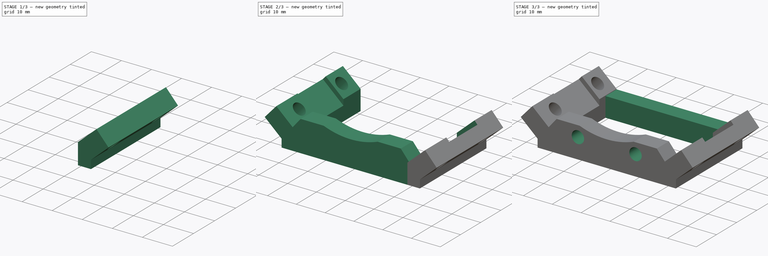
[diagram: build sequence overview — one tinted view per stage of 3, left to right]
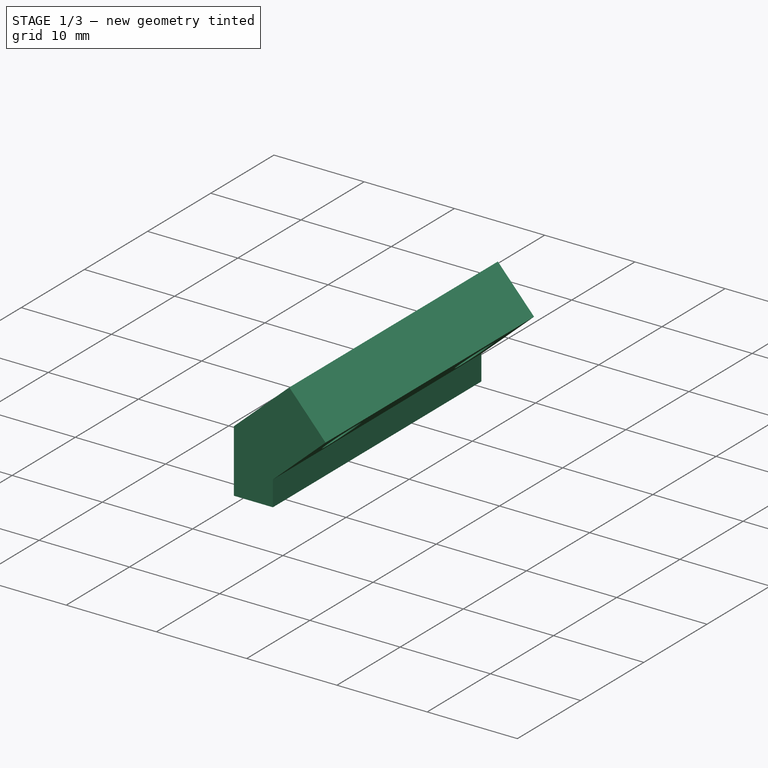
[diagram: stage 1 of 3 — iso view after this stage's code; geometry added in this stage tinted green]
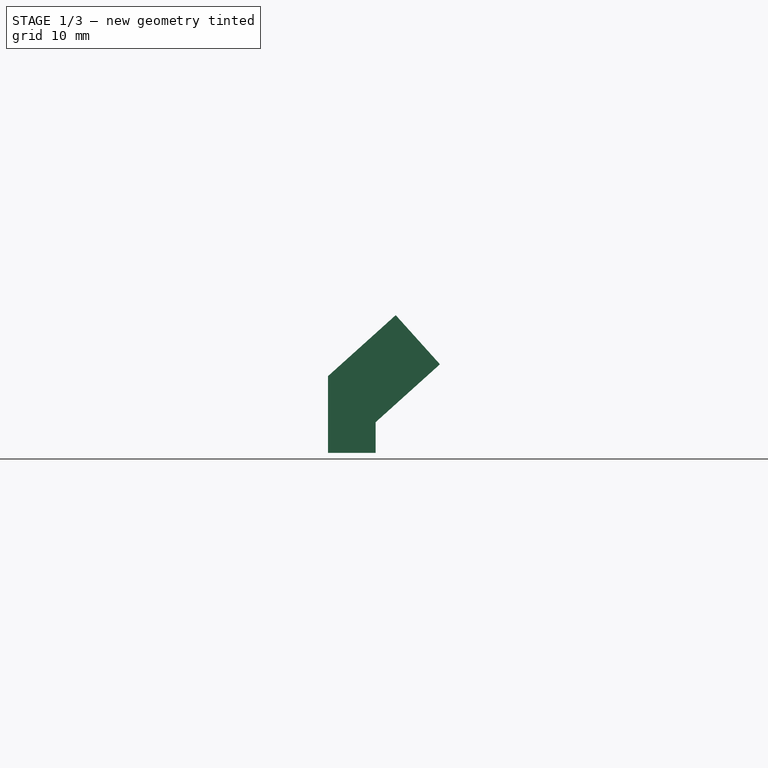
[diagram: stage 1 of 3 — front view after this stage's code; geometry added in this stage tinted green]
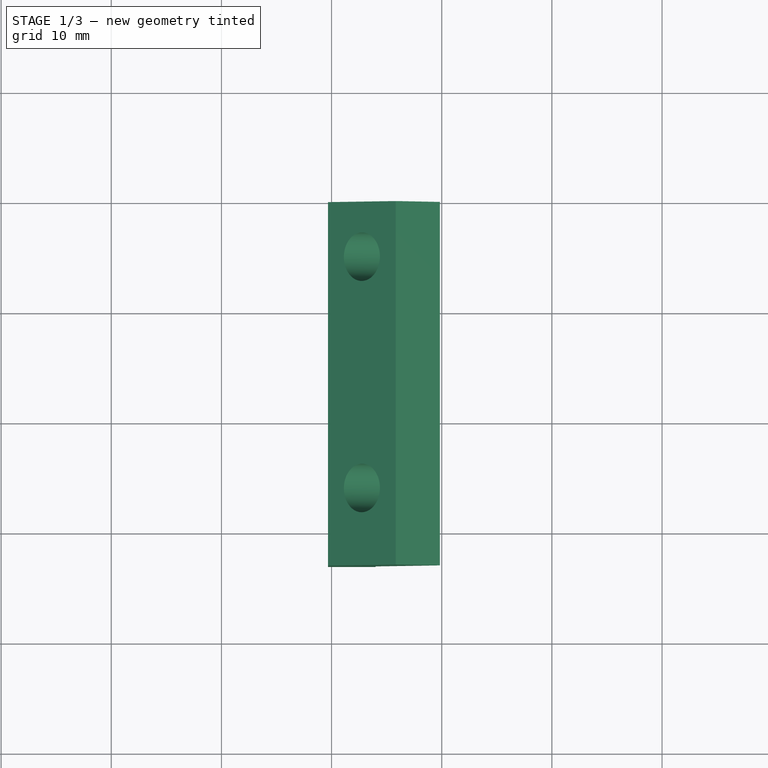
[diagram: stage 1 of 3 — top view after this stage's code; geometry added in this stage tinted green]
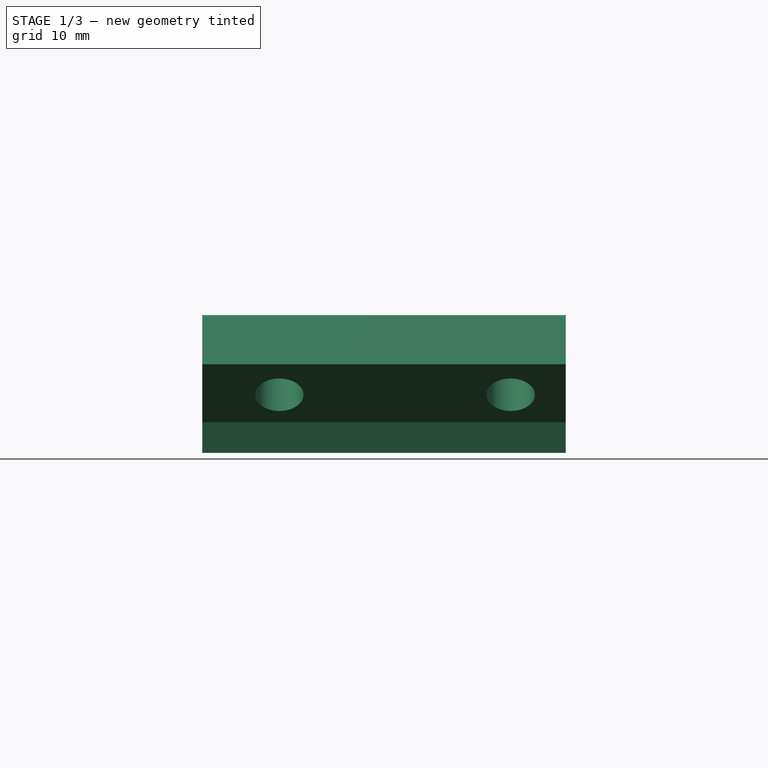
[diagram: stage 1 of 3 — right view after this stage's code; geometry added in this stage tinted green]
FCSTD DOCUMENT  (FreeCAD 0.21R32110 (Git))
Label: Frame_Roll_Limit_IR_Sensor_Mount
License: All rights reserved
LicenseURL: http://en.wikipedia.org/wiki/All_rights_reserved
objects: Sketcher::SketchObject×6, PartDesign::Pad×3, PartDesign::Pocket×3, PartDesign::Plane×1, PartDesign::Mirrored×1, PartDesign::Body×1
note: 21 computed .brp shape members not serialized (recipe doc carries the construction recipe); baked Part::Feature solids carry a one-line shape summary decoded from their .brp

FEATURE [Sketcher::SketchObject] Sketch097
  AttachmentOffset = pos=(0,0,-27) rot=(0,0,1;0rad)
  FullyConstrained = true
  MapMode = 5
  Placement = pos=(0,27,6e-15) rot=(1,0,0;1.5708rad)
  Support = -> [XZ_Plane031]
  sketch-geometry (7):
    g0: LineSegment StartX=25.8209 StartY=-22.5023 StartZ=0 EndX=19.68 EndY=-28.0316 EndZ=0
    g1: LineSegment StartX=19.68 StartY=-35 StartZ=0 EndX=24 EndY=-35 EndZ=0
    g2: LineSegment StartX=0 StartY=0 StartZ=0 EndX=22.7504 EndY=-25.2669 EndZ=0
    g3: LineSegment StartX=24 StartY=-32.2156 StartZ=0 EndX=24 EndY=-35 EndZ=0
    g4: LineSegment StartX=19.68 StartY=-35 StartZ=0 EndX=19.68 EndY=-28.0316 EndZ=0
    g5: LineSegment StartX=24 StartY=-32.2156 StartZ=0 EndX=29.8357 EndY=-26.9612 EndZ=0
    g6: LineSegment StartX=25.8209 StartY=-22.5023 StartZ=0 EndX=29.8357 EndY=-26.9612 EndZ=0
  constraints (20):
    c: Horizontal(g1)
    c: DistanceY(g1) = -35
    c: Coincident(g2,g-1)
    c: Angle(g2,g0) = 1.5708
    c: Coincident(g3,g1)
    c: Vertical(g3)
    c: Symmetric(g0,g0,g2)
    c: Coincident(g4,g1)
    c: Vertical(g4)
    c: Angle(g2,g-1) = 0.837758
    c: Distance(g2,g2) = 34
    c: Parallel(g0,g5)
    c: Coincident(g6,g0)
    c: Coincident(g6,g5)
    c: Angle(g0,g6) = 1.5708
    c: Coincident(g3,g5)
    c: Distance(g6) = 6
    c: Coincident(g4,g0)
    c: Distance(g1) = 4.32
    c: DistanceX(g1) = 24
FEATURE [PartDesign::Pad] Pad054
  Direction = (0,-1,-2e-16)
  Length = 33
  Length2 = 10
  Placement = pos=(0,0,0) rot=(1,0,0;1.5708rad)
  Profile = -> Sketch097
  ReferenceAxis = -> Sketch097 [N_Axis]
  Reversed = true
  Type = 0
FEATURE [PartDesign::Plane] DatumPlane
  Length = 82.4977
  MapMode = 5
  Placement = pos=(22.7504,-5.6e-15,-25.2669) rot=(-0.358368,0,0.93358;3.14159rad)
  ResizeMode = 0
  Support = -> [Pad054]
  Width = 61.8839
FEATURE [Sketcher::SketchObject] Sketch098
  AttachmentOffset = pos=(0,0.75,0) rot=(0,0,1;0rad)
  FullyConstrained = true
  MapMode = 5
  Placement = pos=(22.7504,-0.75,-25.2669) rot=(-0.358368,0,0.93358;3.14159rad)
  Support = -> [DatumPlane]
  sketch-geometry (2):
    g0: Circle CenterX=0 CenterY=-55.75 CenterZ=0 NormalX=0 NormalY=0 NormalZ=1 AngleXU=0 Radius=2.2
    g1: Circle CenterX=0 CenterY=-34.75 CenterZ=0 NormalX=0 NormalY=0 NormalZ=1 AngleXU=0 Radius=2.2
  constraints (6):
    c: PointOnObject(g0,g-2)
    c: PointOnObject(g1,g-2)
    c: DistanceY(g0,g1) = 21
    c: DistanceY(g1) = -34.75
    c: Equal(g0,g1)
    c: Diameter(g0) = 4.4
FEATURE [PartDesign::Pocket] Pocket034
  BaseFeature = -> Pad054
  Direction = (0.669131,-2e-16,-0.743145)
  Length = 5
  Length2 = 5
  Placement = pos=(0,0,0) rot=(1,0,0;1.5708rad)
  Profile = -> Sketch098
  ReferenceAxis = -> Sketch098 [N_Axis]
  Type = 1
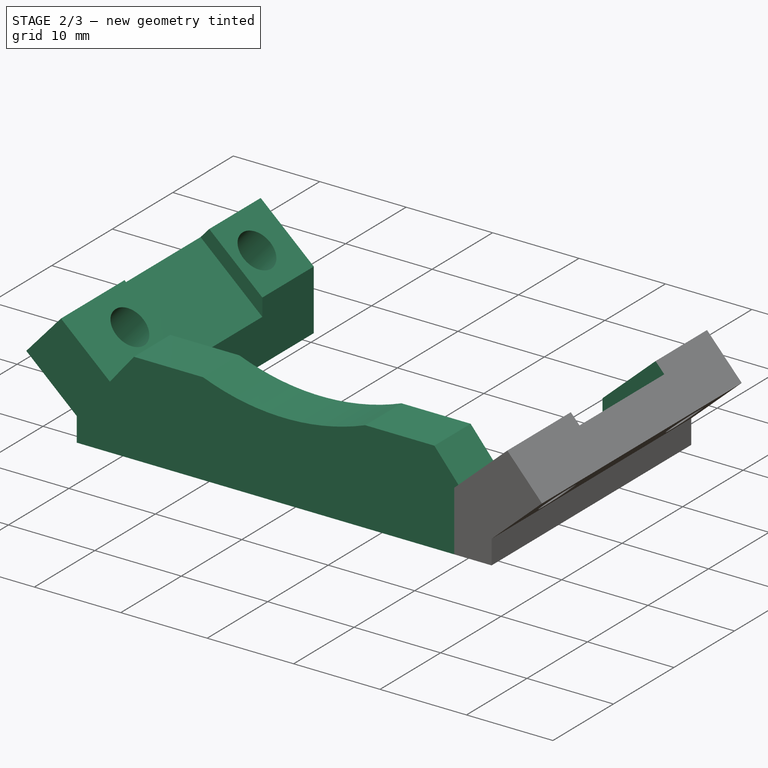
[diagram: stage 2 of 3 — iso view after this stage's code; geometry added in this stage tinted green]
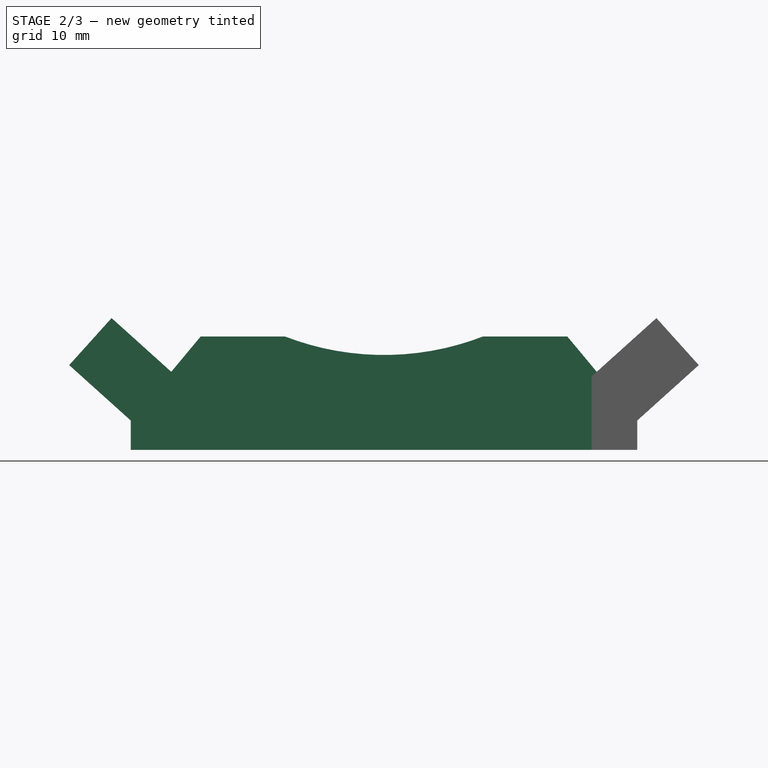
[diagram: stage 2 of 3 — front view after this stage's code; geometry added in this stage tinted green]
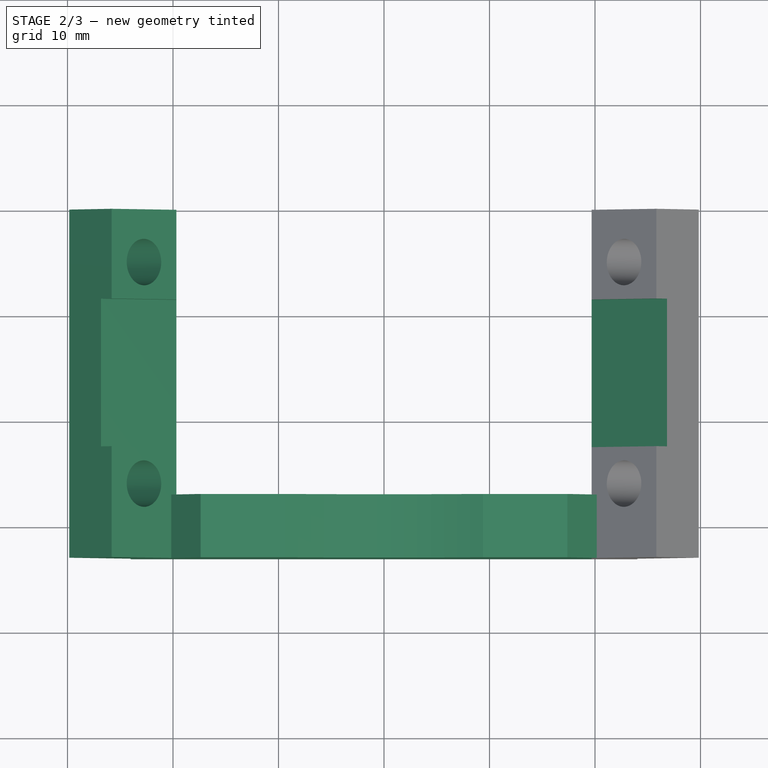
[diagram: stage 2 of 3 — top view after this stage's code; geometry added in this stage tinted green]
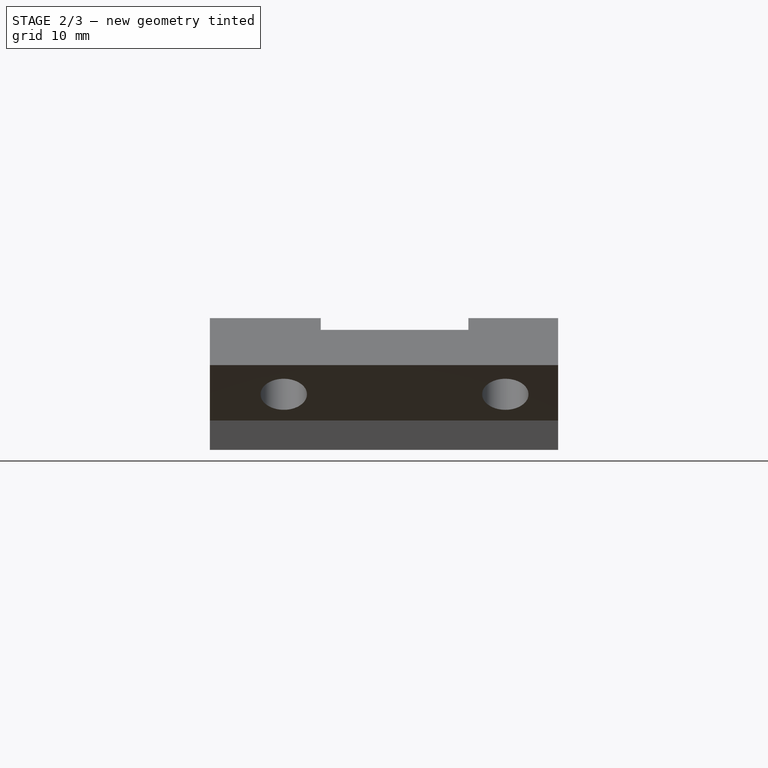
[diagram: stage 2 of 3 — right view after this stage's code; geometry added in this stage tinted green]
FEATURE [Sketcher::SketchObject] Sketch099
  AttachmentOffset = pos=(0,0.75,0) rot=(0,0,1;0rad)
  FullyConstrained = true
  MapMode = 5
  Placement = pos=(22.7504,-0.75,-25.2669) rot=(-0.358368,0,0.93358;3.14159rad)
  Support = -> [DatumPlane]
  sketch-geometry (4):
    g0: LineSegment StartX=-7 StartY=-38.25 StartZ=0 EndX=7 EndY=-38.25 EndZ=0
    g1: LineSegment StartX=7 StartY=-38.25 StartZ=0 EndX=7 EndY=-52.25 EndZ=0
    g2: LineSegment StartX=7 StartY=-52.25 StartZ=0 EndX=-7 EndY=-52.25 EndZ=0
    g3: LineSegment StartX=-7 StartY=-52.25 StartZ=0 EndX=-7 EndY=-38.25 EndZ=0
  constraints (11):
    c: Coincident(g0,g1)
    c: Coincident(g1,g2)
    c: Coincident(g2,g3)
    c: Coincident(g3,g0)
    c: Horizontal(g2)
    c: Vertical(g1)
    c: Vertical(g3)
    c: DistanceY(g1,g1) = 14
    c: DistanceX(g2,g2) = 14
    c: Symmetric(g0,g0,g-2)
    c: DistanceY(g0) = -38.25
FEATURE [PartDesign::Pocket] Pocket035
  BaseFeature = -> Pocket034
  Direction = (0.669131,-2e-16,-0.743145)
  Length = 1.5
  Length2 = 5
  Placement = pos=(0,0,0) rot=(1,0,0;1.5708rad)
  Profile = -> Sketch099
  ReferenceAxis = -> Sketch099 [N_Axis]
  Type = 0
FEATURE [Sketcher::SketchObject] Sketch100
  AttachmentOffset = pos=(0,0,-27) rot=(0,0,1;0rad)
  FullyConstrained = true
  MapMode = 5
  Placement = pos=(0,27,6e-15) rot=(1,0,0;1.5708rad)
  Support = -> [XZ_Plane031]
  sketch-geometry (8):
    g0: LineSegment StartX=17.3775 StartY=-24.25 StartZ=0 EndX=9.3775 EndY=-24.25 EndZ=0
    g1: LineSegment StartX=-21.5 StartY=-29.2 StartZ=0 EndX=-21.5 EndY=-35 EndZ=0
    g2: LineSegment StartX=-21.5 StartY=-35 StartZ=0 EndX=21.5 EndY=-35 EndZ=0
    g3: ArcOfCircle CenterX=0 CenterY=0 CenterZ=0 NormalX=0 NormalY=0 NormalZ=1 AngleXU=0 Radius=26 StartAngle=4.3434 EndAngle=5.08138
    g4: LineSegment StartX=-9.3775 StartY=-24.25 StartZ=0 EndX=-17.3775 EndY=-24.25 EndZ=0
    g5: LineSegment StartX=21.5 StartY=-35 StartZ=0 EndX=21.5 EndY=-29.2 EndZ=0
    g6: LineSegment StartX=21.5 StartY=-29.2 StartZ=0 EndX=17.3775 EndY=-24.25 EndZ=0
    g7: LineSegment StartX=-21.5 StartY=-29.2 StartZ=0 EndX=-17.3775 EndY=-24.25 EndZ=0
  constraints (23):
    c: Coincident(g1,g2)
    c: Vertical(g1)
    c: DistanceY(g2) = -35
    c: Coincident(g3,g-1)
    c: Coincident(g0,g3)
    c: Coincident(g4,g3)
    c: Horizontal(g3,g0)
    c: Horizontal(g4)
    c: Diameter(g3) = 52
    c: Symmetric(g1,g2,g-2)
    c: Coincident(g5,g2)
    c: Vertical(g5)
    c: Coincident(g6,g5)
    c: Coincident(g6,g0)
    c: Coincident(g7,g1)
    c: Coincident(g7,g4)
    c: Equal(g5,g1)
    c: Distance(g4) = 8
    c: Equal(g4,g0)
    c: Distance(g2) = 43
    c: Distance(g1) = 5.8
    c: Horizontal(g0)
    c: DistanceY(g1,g4) = 10.75
FEATURE [PartDesign::Pad] Pad055
  BaseFeature = -> Pocket035
  Direction = (0,-1,-2e-16)
  Length = 6
  Length2 = 10
  Placement = pos=(0,0,0) rot=(1,0,0;1.5708rad)
  Profile = -> Sketch100
  ReferenceAxis = -> Sketch100 [N_Axis]
  Reversed = true
  Type = 0
FEATURE [Sketcher::SketchObject] Sketch101
  AttachmentOffset = pos=(0,0,-33) rot=(0,0,1;0rad)
  FullyConstrained = true
  MapMode = 5
  Placement = pos=(0,33,7.3e-15) rot=(1,0,0;1.5708rad)
  Support = -> [XZ_Plane031]
  sketch-geometry (2):
    g0: Circle CenterX=-10 CenterY=-28 CenterZ=0 NormalX=0 NormalY=0 NormalZ=1 AngleXU=0 Radius=2.15
    g1: Circle CenterX=10 CenterY=-28 CenterZ=0 NormalX=0 NormalY=0 NormalZ=1 AngleXU=0 Radius=2.15
  constraints (5):
    c: Equal(g0,g1)
    c: Diameter(g0) = 4.3
    c: Symmetric(g0,g1,g-2)
    c: DistanceY(g0) = -28
    c: DistanceX(g0) = -10
FEATURE [Sketcher::SketchObject] Sketch102
  AttachmentOffset = pos=(0,1,-35) rot=(0,0,1;0rad)
  FullyConstrained = true
  MapMode = 5
  Placement = pos=(0,1,-35) rot=(0,0,1;0rad)
  Support = -> [XY_Plane031]
  sketch-geometry (4):
    g0: LineSegment StartX=-20 StartY=59 StartZ=0 EndX=20 EndY=59 EndZ=0
    g1: LineSegment StartX=20 StartY=59 StartZ=0 EndX=20 EndY=53.5 EndZ=0
    g2: LineSegment StartX=20 StartY=53.5 StartZ=0 EndX=-20 EndY=53.5 EndZ=0
    g3: LineSegment StartX=-20 StartY=53.5 StartZ=0 EndX=-20 EndY=59 EndZ=0
  constraints (11):
    c: Coincident(g0,g1)
    c: Coincident(g1,g2)
    c: Coincident(g2,g3)
    c: Coincident(g3,g0)
    c: Horizontal(g0)
    c: Vertical(g1)
    c: Vertical(g3)
    c: DistanceY(g0) = 59
    c: Distance(g1) = 5.5
    c: Distance(g2) = 40
    c: Symmetric(g2,g1,g-2)
FEATURE [PartDesign::Mirrored] Mirrored
  BaseFeature = -> Pad055
  MirrorPlane = -> Sketch097 [V_Axis]
  Originals = -> [Pad054,Pocket034,Pocket035]
  Placement = pos=(0,0,0) rot=(1,0,0;1.5708rad)
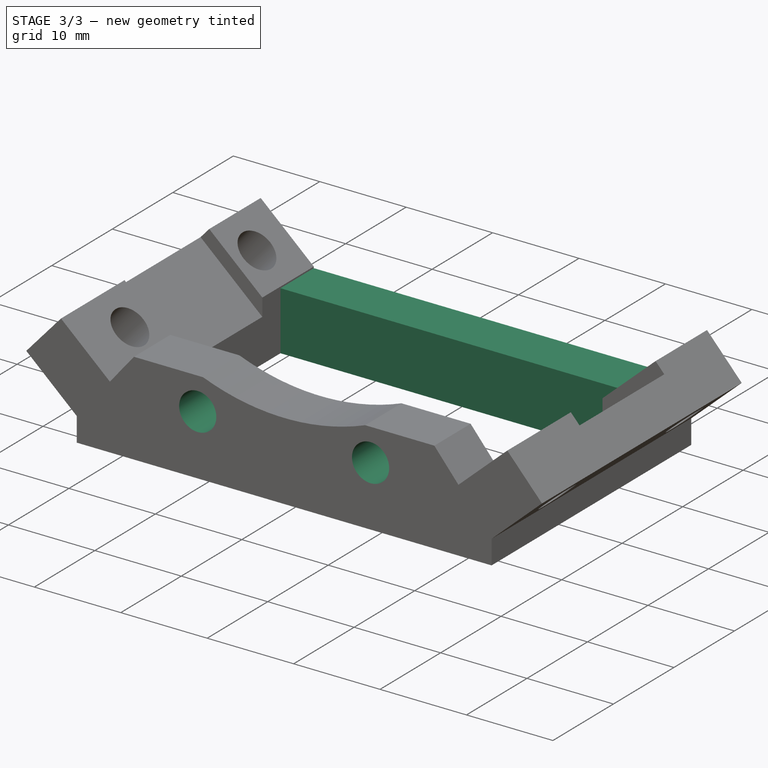
[diagram: stage 3 of 3 — iso view after this stage's code; geometry added in this stage tinted green]
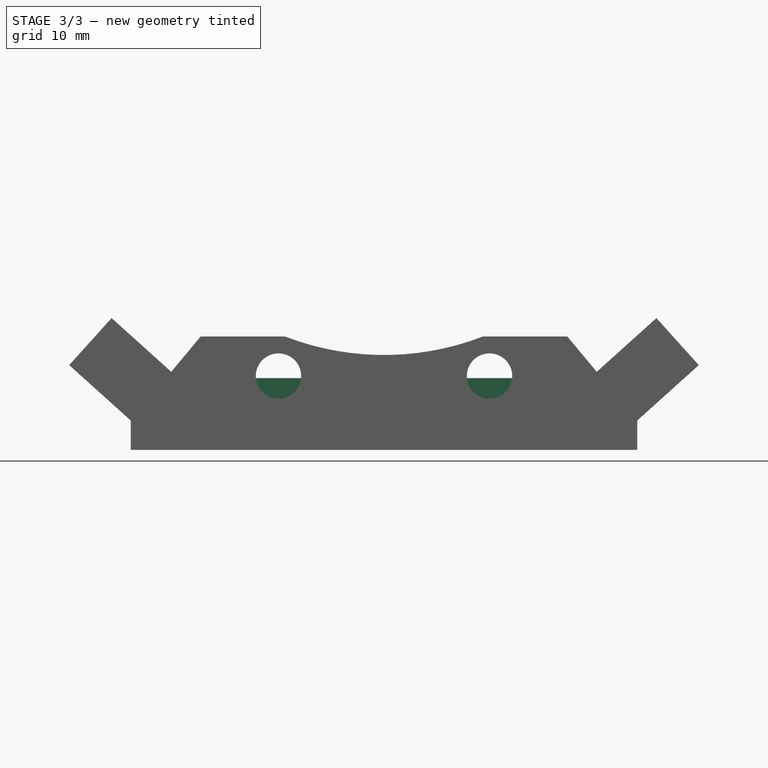
[diagram: stage 3 of 3 — front view after this stage's code; geometry added in this stage tinted green]
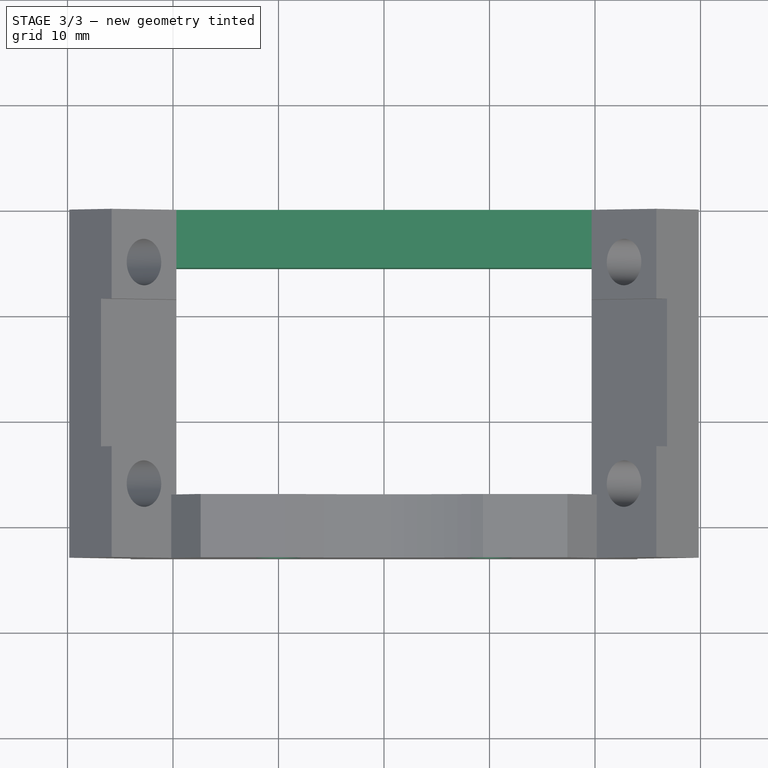
[diagram: stage 3 of 3 — top view after this stage's code; geometry added in this stage tinted green]
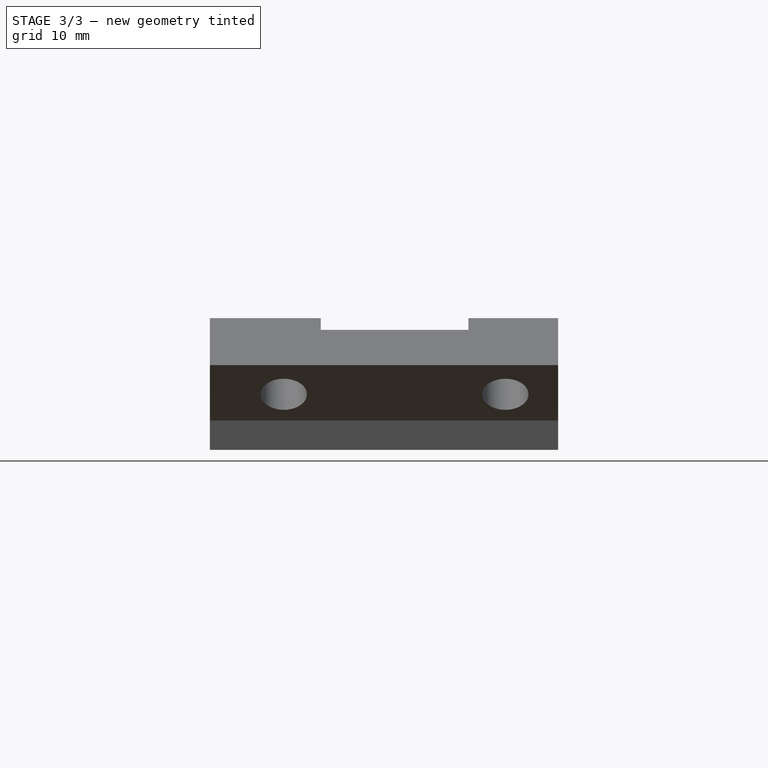
[diagram: stage 3 of 3 — right view after this stage's code; geometry added in this stage tinted green]
FEATURE [PartDesign::Pocket] Pocket036
  BaseFeature = -> Mirrored
  Direction = (0,1,2e-16)
  Length = 5
  Length2 = 5
  Placement = pos=(0,0,0) rot=(1,0,0;1.5708rad)
  Profile = -> Sketch101
  ReferenceAxis = -> Sketch101 [N_Axis]
  Reversed = true
  Type = 1
FEATURE [PartDesign::Pad] Pad
  BaseFeature = -> Pocket036
  Direction = (0,0,1)
  Length = 6.8
  Length2 = 10
  Placement = pos=(0,0,0) rot=(1,0,0;1.5708rad)
  Profile = -> Sketch102
  ReferenceAxis = -> Sketch102 [N_Axis]
  Type = 0
FEATURE [PartDesign::Body] Body022  label="Frame_Roll_IR_Sensor_Mount"
  Group = -> [Sketch097,Pad054,DatumPlane,Sketch098,Sketch099,Pocket034,Pocket035,Sketch100,Pad055,Mirrored,Sketch101,Pocket036,Sketch102,Pad]
  Origin = -> Origin031
  Tip = -> Pad
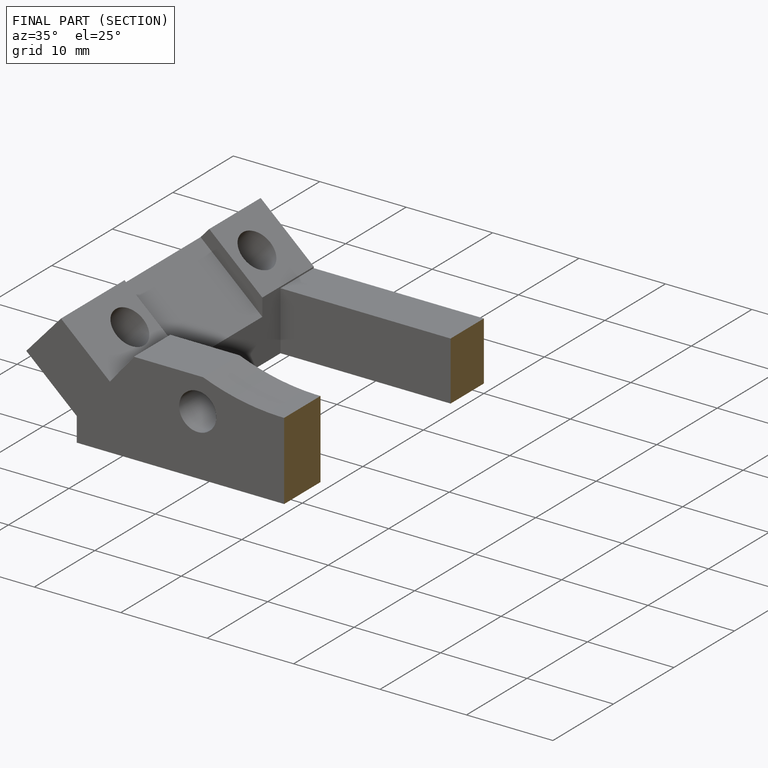
[diagram: finished part — half-section view (interior)]
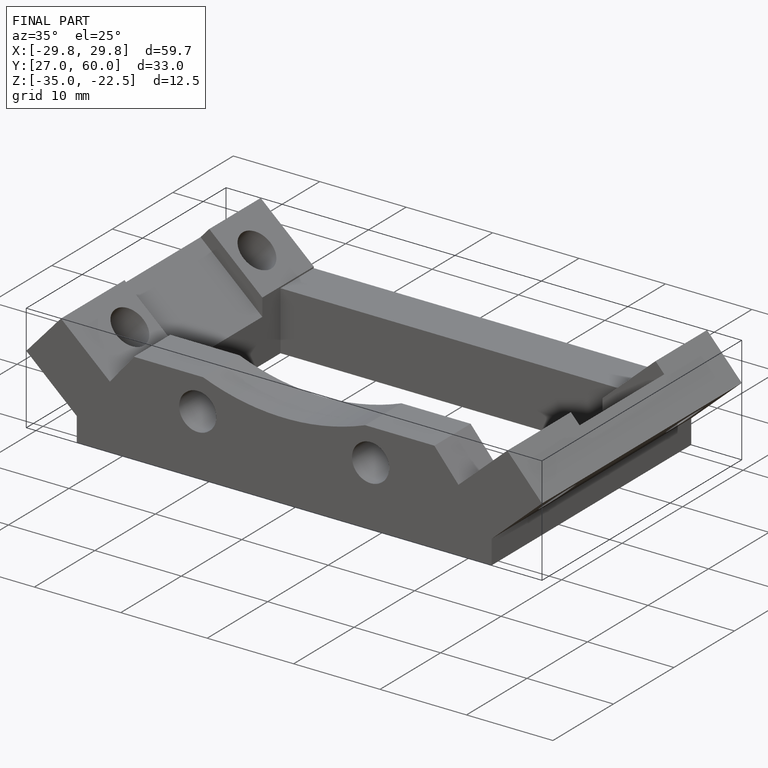
[diagram: finished part — iso view with bounding-box wireframe]
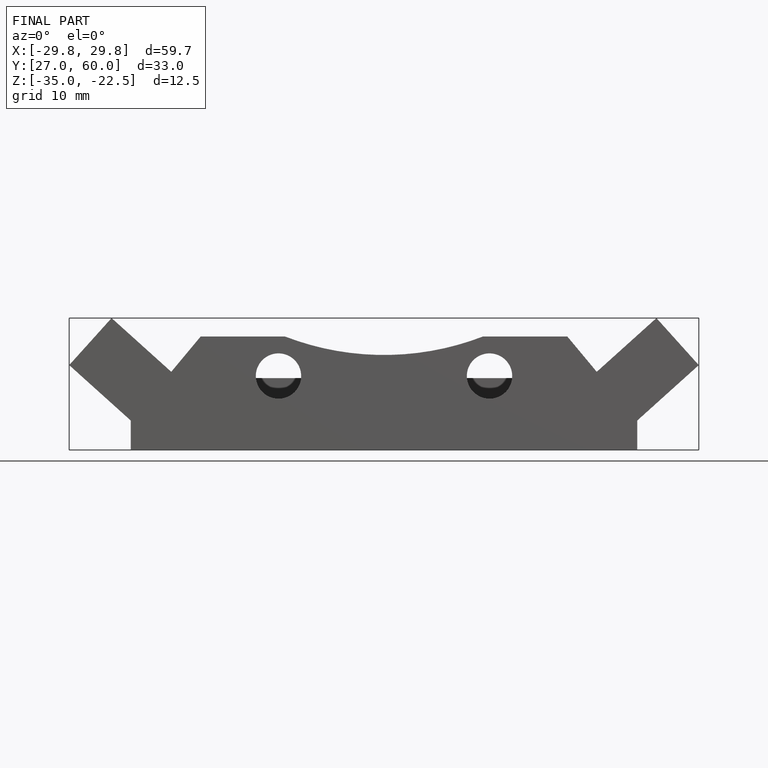
[diagram: finished part — front view with bounding-box wireframe]
